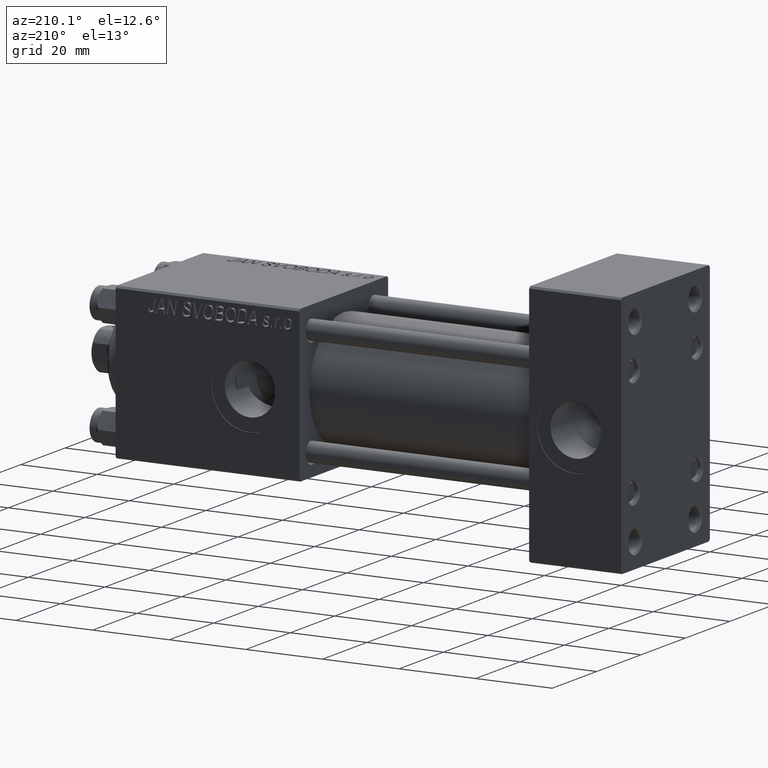
[diagram: clean part render]
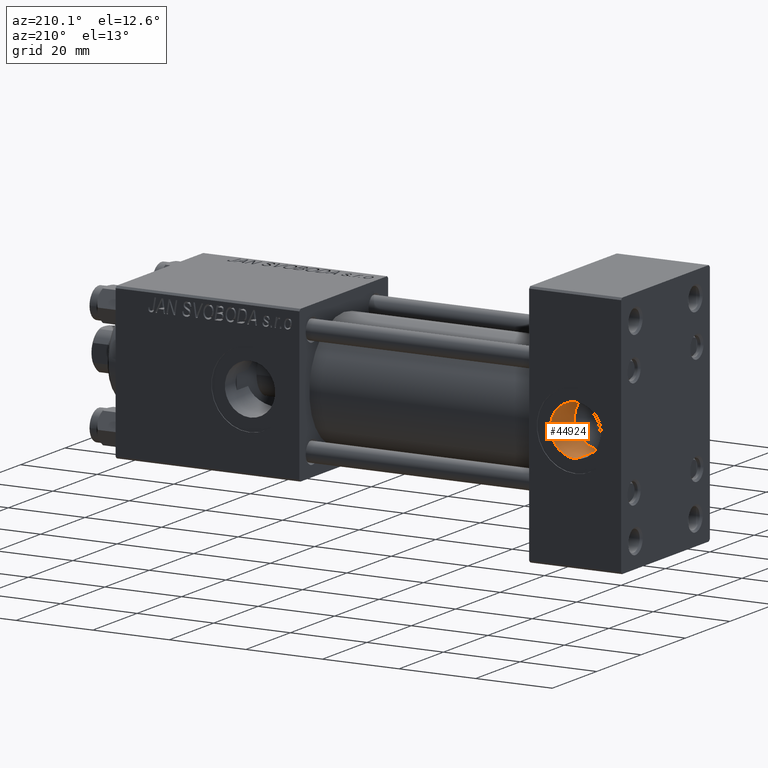
[diagram: same view with one face highlighted and labeled with its STEP entity id]
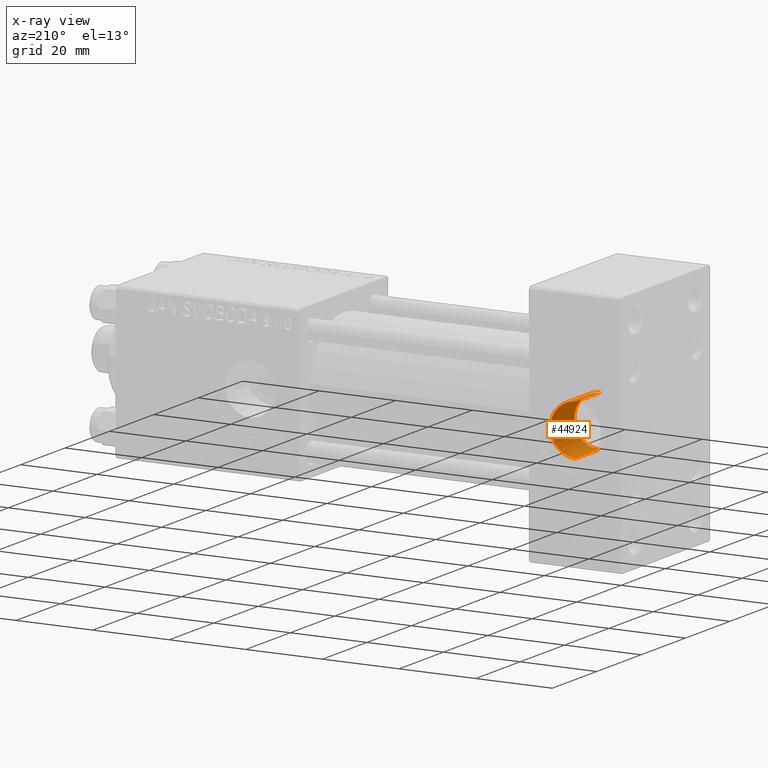
[diagram: x-ray of the same camera — body ghosted, the highlighted face saturated]
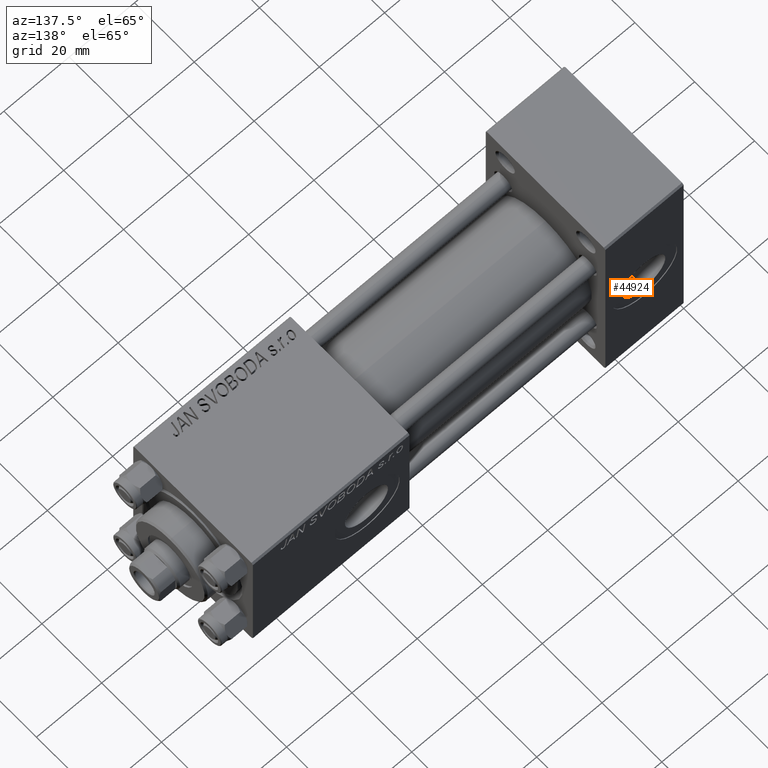
[diagram: same view with one face highlighted and labeled with its STEP entity id]
A machine part, auxiliary view. The second image highlights one B-rep face of the part: STEP entity #44924.
The next image is the same camera in x-ray: the body ghosted, the highlighted face saturated — about 0% of this face is hidden behind the body in this view.
A second angle (auxiliary view) of the same face is appended — the face is thin or edge-on in the first view.
In plain terms, the highlighted cylindrical surface (edge-blend (fillet) strip) has radius 6.58 mm, axis along (0, 1, 0).
Its self-contained STEP definition (entity closure, byte-faithful):
#433 = LINE ( 'NONE', #34788, #20062 ) ;
#1074 = DIRECTION ( 'NONE',  ( -0.000000000000000000, -1.000000000000000000, -0.000000000000000000 ) ) ;
#1430 = CARTESIAN_POINT ( 'NONE',  ( 12.00000000000000000, 8.939999999999994174, 6.579999999999998295 ) ) ;
#1954 = CARTESIAN_POINT ( 'NONE',  ( 12.00000000000000000, 19.79999999999999716, -6.579999999999998295 ) ) ;
#3811 = DIRECTION ( 'NONE',  ( -0.000000000000000000, 1.000000000000000000, -0.000000000000000000 ) ) ;
#4375 = CARTESIAN_POINT ( 'NONE',  ( 12.00000000000000000, 8.939999999999994174, 0.000000000000000000 ) ) ;
#6863 = CARTESIAN_POINT ( 'NONE',  ( 12.00000000000000000, 8.999999999999998224, -6.579999999999998295 ) ) ;
#8811 = EDGE_CURVE ( 'NONE', #32957, #9511, #13530, .T. ) ;
#9151 = ORIENTED_EDGE ( 'NONE', *, *, #8811, .T. ) ;
#9511 = VERTEX_POINT ( 'NONE', #1954 ) ;
#9546 = AXIS2_PLACEMENT_3D ( 'NONE', #28110, #32644, #32890 ) ;
#10638 = AXIS2_PLACEMENT_3D ( 'NONE', #23745, #3811, #11666 ) ;
#11666 = DIRECTION ( 'NONE',  ( 0.000000000000000000, 0.000000000000000000, 1.000000000000000000 ) ) ;
#12895 = VERTEX_POINT ( 'NONE', #21661 ) ;
#13530 = CIRCLE ( 'NONE', #9546, 6.579999999999998295 ) ;
#13868 = EDGE_CURVE ( 'NONE', #31681, #32957, #433, .T. ) ;
#17568 = ORIENTED_EDGE ( 'NONE', *, *, #13868, .T. ) ;
#19509 = VECTOR ( 'NONE', #33632, 1000.000000000000000 ) ;
#20062 = VECTOR ( 'NONE', #23409, 1000.000000000000000 ) ;
#21661 = CARTESIAN_POINT ( 'NONE',  ( 12.00000000000000000, 8.939999999999994174, -6.579999999999998295 ) ) ;
#23409 = DIRECTION ( 'NONE',  ( -0.000000000000000000, 1.000000000000000000, -0.000000000000000000 ) ) ;
#23745 = CARTESIAN_POINT ( 'NONE',  ( 12.00000000000000000, 8.999999999999998224, 0.000000000000000000 ) ) ;
#28110 = CARTESIAN_POINT ( 'NONE',  ( 12.00000000000000000, 19.79999999999999716, 0.000000000000000000 ) ) ;
#29486 = CARTESIAN_POINT ( 'NONE',  ( 12.00000000000000000, 19.79999999999999716, 6.579999999999998295 ) ) ;
#30595 = CYLINDRICAL_SURFACE ( 'NONE', #10638, 6.579999999999998295 ) ;
#31636 = DIRECTION ( 'NONE',  ( 0.000000000000000000, 0.000000000000000000, 1.000000000000000000 ) ) ;
#31681 = VERTEX_POINT ( 'NONE', #1430 ) ;
#32418 = AXIS2_PLACEMENT_3D ( 'NONE', #4375, #1074, #31636 ) ;
#32644 = DIRECTION ( 'NONE',  ( 0.000000000000000000, 1.000000000000000000, 0.000000000000000000 ) ) ;
#32890 = DIRECTION ( 'NONE',  ( 0.000000000000000000, 0.000000000000000000, 1.000000000000000000 ) ) ;
#32957 = VERTEX_POINT ( 'NONE', #29486 ) ;
#33632 = DIRECTION ( 'NONE',  ( -0.000000000000000000, 1.000000000000000000, -0.000000000000000000 ) ) ;
#34012 = ORIENTED_EDGE ( 'NONE', *, *, #44851, .F. ) ;
#34374 = LINE ( 'NONE', #6863, #19509 ) ;
#34788 = CARTESIAN_POINT ( 'NONE',  ( 12.00000000000000000, 8.999999999999998224, 6.579999999999998295 ) ) ;
#37481 = ORIENTED_EDGE ( 'NONE', *, *, #41384, .T. ) ;
#41384 = EDGE_CURVE ( 'NONE', #12895, #31681, #48534, .T. ) ;
#43199 = EDGE_LOOP ( 'NONE', ( #34012, #37481, #17568, #9151 ) ) ;
#44851 = EDGE_CURVE ( 'NONE', #12895, #9511, #34374, .T. ) ;
#44924 = ADVANCED_FACE ( 'NONE', ( #46715 ), #30595, .F. ) ;
#46715 = FACE_OUTER_BOUND ( 'NONE', #43199, .T. ) ;
#48534 = CIRCLE ( 'NONE', #32418, 6.579999999999998295 ) ;